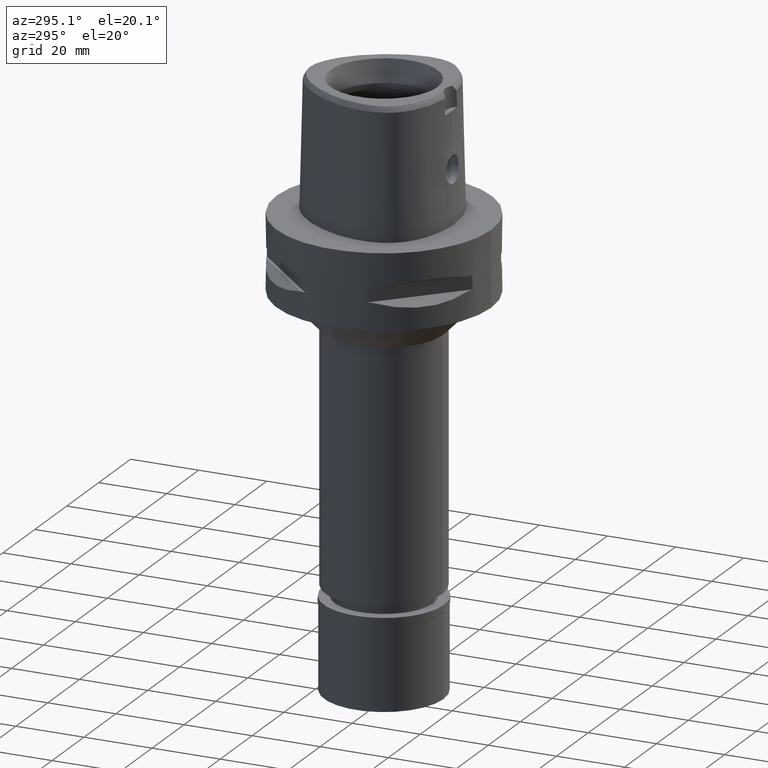
[diagram: clean part render]
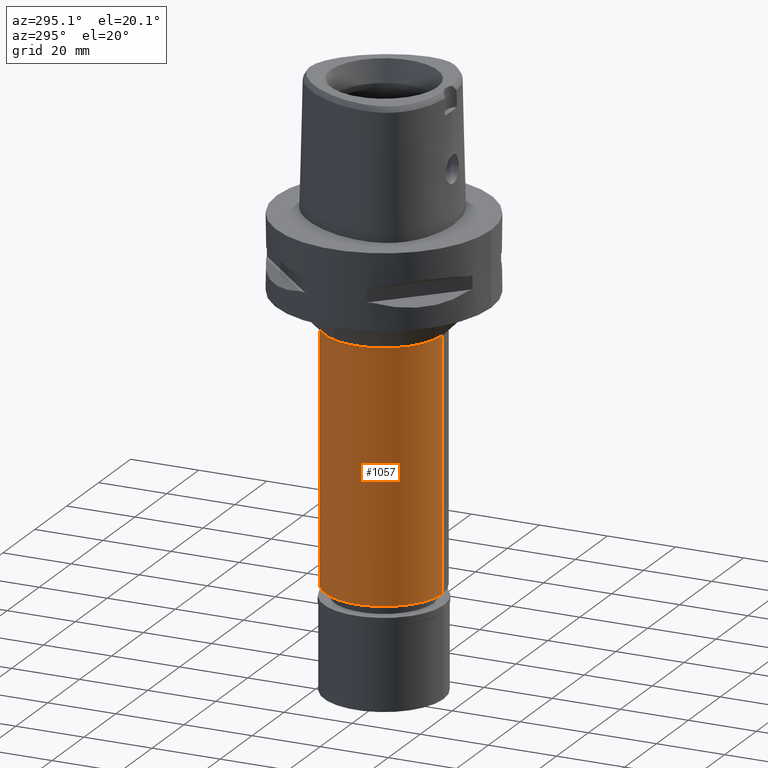
[diagram: same view with one face highlighted and labeled with its STEP entity id]
A machine part, auxiliary view. The second image highlights one B-rep face of the part: STEP entity #1057.
In plain terms, the highlighted cylindrical surface (partial cylindrical patch) has radius 17.25 mm, axis along (0, 0, -1).
Its self-contained STEP definition (entity closure, byte-faithful):
#119 = AXIS2_PLACEMENT_3D ( 'NONE', #4376, #1720, #3242 ) ;
#142 = ORIENTED_EDGE ( 'NONE', *, *, #3238, .T. ) ;
#165 = DIRECTION ( 'NONE',  ( 0.0000000000000000000, 0.0000000000000000000, 1.000000000000000000 ) ) ;
#541 = FACE_OUTER_BOUND ( 'NONE', #2959, .T. ) ;
#664 = VERTEX_POINT ( 'NONE', #5015 ) ;
#716 = CIRCLE ( 'NONE', #1050, 17.25000000000000000 ) ;
#840 = ORIENTED_EDGE ( 'NONE', *, *, #2641, .T. ) ;
#882 = CYLINDRICAL_SURFACE ( 'NONE', #119, 17.25000000000000000 ) ;
#979 = CARTESIAN_POINT ( 'NONE',  ( 0.0000000000000000000, -17.25000000000000000, -32.00000000000000000 ) ) ;
#1000 = DIRECTION ( 'NONE',  ( 0.0000000000000000000, 1.000000000000000000, 0.0000000000000000000 ) ) ;
#1004 = EDGE_CURVE ( 'NONE', #2747, #664, #2168, .T. ) ;
#1050 = AXIS2_PLACEMENT_3D ( 'NONE', #2267, #2243, #1852 ) ;
#1057 = ADVANCED_FACE ( 'NONE', ( #541 ), #882, .T. ) ;
#1112 = AXIS2_PLACEMENT_3D ( 'NONE', #4840, #165, #1000 ) ;
#1283 = CARTESIAN_POINT ( 'NONE',  ( 0.0000000000000000000, 17.25000000000000000, -32.00000000000000000 ) ) ;
#1454 = CARTESIAN_POINT ( 'NONE',  ( 0.0000000000000000000, 17.25000000000000000, -105.2000000000000028 ) ) ;
#1556 = ORIENTED_EDGE ( 'NONE', *, *, #2182, .F. ) ;
#1720 = DIRECTION ( 'NONE',  ( 0.0000000000000000000, 0.0000000000000000000, -1.000000000000000000 ) ) ;
#1852 = DIRECTION ( 'NONE',  ( 0.0000000000000000000, -1.000000000000000000, 0.0000000000000000000 ) ) ;
#2168 = CIRCLE ( 'NONE', #1112, 17.25000000000000000 ) ;
#2182 = EDGE_CURVE ( 'NONE', #2446, #664, #2725, .T. ) ;
#2243 = DIRECTION ( 'NONE',  ( 0.0000000000000000000, 0.0000000000000000000, -1.000000000000000000 ) ) ;
#2267 = CARTESIAN_POINT ( 'NONE',  ( 0.0000000000000000000, 0.0000000000000000000, -32.00000000000000000 ) ) ;
#2424 = DIRECTION ( 'NONE',  ( 0.0000000000000000000, 0.0000000000000000000, -1.000000000000000000 ) ) ;
#2446 = VERTEX_POINT ( 'NONE', #979 ) ;
#2454 = LINE ( 'NONE', #1283, #3070 ) ;
#2465 = CARTESIAN_POINT ( 'NONE',  ( 0.0000000000000000000, 17.25000000000000000, -32.00000000000000000 ) ) ;
#2641 = EDGE_CURVE ( 'NONE', #4654, #2747, #2454, .T. ) ;
#2682 = DIRECTION ( 'NONE',  ( 0.0000000000000000000, 0.0000000000000000000, -1.000000000000000000 ) ) ;
#2725 = LINE ( 'NONE', #4600, #4679 ) ;
#2747 = VERTEX_POINT ( 'NONE', #1454 ) ;
#2959 = EDGE_LOOP ( 'NONE', ( #3266, #1556, #142, #840 ) ) ;
#3070 = VECTOR ( 'NONE', #2424, 1000.000000000000000 ) ;
#3238 = EDGE_CURVE ( 'NONE', #2446, #4654, #716, .T. ) ;
#3242 = DIRECTION ( 'NONE',  ( 0.0000000000000000000, -1.000000000000000000, 0.0000000000000000000 ) ) ;
#3266 = ORIENTED_EDGE ( 'NONE', *, *, #1004, .T. ) ;
#4376 = CARTESIAN_POINT ( 'NONE',  ( 0.0000000000000000000, 1.300574900694000041E-14, 6.200000000000000178 ) ) ;
#4600 = CARTESIAN_POINT ( 'NONE',  ( 0.0000000000000000000, -17.25000000000000000, -32.00000000000000000 ) ) ;
#4654 = VERTEX_POINT ( 'NONE', #2465 ) ;
#4679 = VECTOR ( 'NONE', #2682, 1000.000000000000000 ) ;
#4840 = CARTESIAN_POINT ( 'NONE',  ( 0.0000000000000000000, 1.300574900694000041E-14, -105.2000000000000028 ) ) ;
#5015 = CARTESIAN_POINT ( 'NONE',  ( 0.0000000000000000000, -17.25000000000000000, -105.2000000000000028 ) ) ;